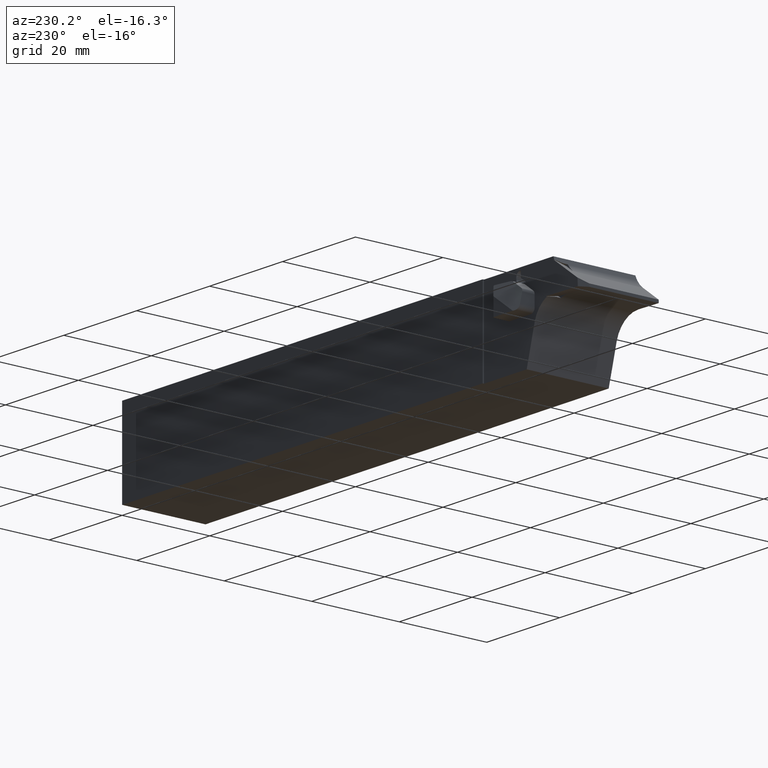
[diagram: clean part render]
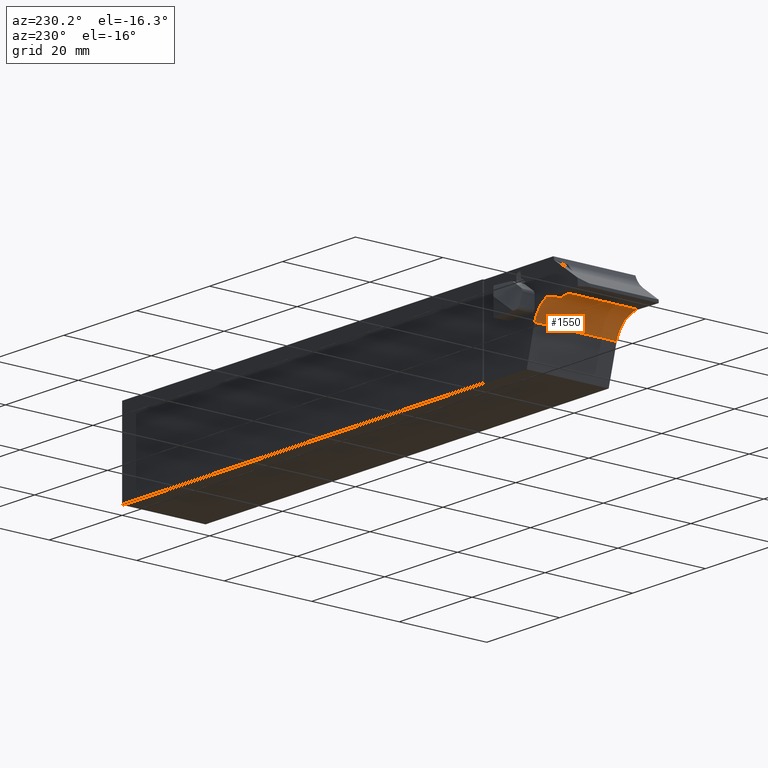
[diagram: same view with one face highlighted and labeled with its STEP entity id]
A machine part, auxiliary view. The second image highlights one B-rep face of the part: STEP entity #1550.
In plain terms, the highlighted cylindrical surface (edge-blend (fillet) strip) has radius 6.1 mm, axis along (-0, -1, 0).
Its self-contained STEP definition (entity closure, byte-faithful):
#3 = VERTEX_POINT ( 'NONE', #933 ) ;
#20 = VECTOR ( 'NONE', #101, 1000.000000000000000 ) ;
#101 = DIRECTION ( 'NONE',  ( -2.482138512326289500E-030, -1.000000000000000000, 0.0000000000000000000 ) ) ;
#117 = AXIS2_PLACEMENT_3D ( 'NONE', #138, #1014, #264 ) ;
#136 = DIRECTION ( 'NONE',  ( -2.482138512326289500E-030, -1.000000000000000000, -0.0000000000000000000 ) ) ;
#138 = CARTESIAN_POINT ( 'NONE',  ( -118.6837122982711600, -3.180000000000959800, -31.55367457411550800 ) ) ;
#206 = CIRCLE ( 'NONE', #717, 6.099999999999976600 ) ;
#241 = VERTEX_POINT ( 'NONE', #1221 ) ;
#258 = CARTESIAN_POINT ( 'NONE',  ( -118.6837122982711600, 159.8378328572430000, -31.55367457411550800 ) ) ;
#259 = ORIENTED_EDGE ( 'NONE', *, *, #787, .F. ) ;
#264 = DIRECTION ( 'NONE',  ( 0.0000000000000000000, 4.265713465516752600E-015, -1.000000000000000000 ) ) ;
#267 = CARTESIAN_POINT ( 'NONE',  ( -116.2854862758919100, -0.9118407661697826000, -25.94321914343558100 ) ) ;
#278 = CIRCLE ( 'NONE', #117, 6.099999999999980100 ) ;
#281 = VERTEX_POINT ( 'NONE', #1506 ) ;
#311 = ORIENTED_EDGE ( 'NONE', *, *, #943, .T. ) ;
#323 = ORIENTED_EDGE ( 'NONE', *, *, #645, .F. ) ;
#337 = ORIENTED_EDGE ( 'NONE', *, *, #412, .T. ) ;
#344 = DIRECTION ( 'NONE',  ( 2.482138512326289500E-030, 1.000000000000000000, -0.0000000000000000000 ) ) ;
#361 = DIRECTION ( 'NONE',  ( -2.482138512326289500E-030, -1.000000000000000000, 0.0000000000000000000 ) ) ;
#385 = CARTESIAN_POINT ( 'NONE',  ( -116.5398343350715300, 159.8378328572430000, -25.84282636400634900 ) ) ;
#412 = EDGE_CURVE ( 'NONE', #281, #1334, #975, .T. ) ;
#534 =( BOUNDED_CURVE ( )  B_SPLINE_CURVE ( 3, ( #965, #1100, #267, #1134 ),
 .UNSPECIFIED., .F., .F. ) 
 B_SPLINE_CURVE_WITH_KNOTS ( ( 4, 4 ),
 ( 0.9874437603678660700, 1.054680931260560500 ),
 .UNSPECIFIED. ) 
 CURVE ( )  GEOMETRIC_REPRESENTATION_ITEM ( )  RATIONAL_B_SPLINE_CURVE ( ( 1.000000000000000000, 0.9996232990521096700, 0.9996232990521096700, 1.000000000000000000 ) ) 
 REPRESENTATION_ITEM ( '' )  );
#546 = CARTESIAN_POINT ( 'NONE',  ( -112.7915647579078400, 159.8378328572430000, -29.97487839899015000 ) ) ;
#556 = CARTESIAN_POINT ( 'NONE',  ( -118.6837122982711600, -3.179999999999983300, -31.55367457411550100 ) ) ;
#571 = DIRECTION ( 'NONE',  ( -2.482138512326289500E-030, -1.000000000000000000, 0.0000000000000000000 ) ) ;
#600 = DIRECTION ( 'NONE',  ( -2.482138512326289500E-030, -1.000000000000000000, 0.0000000000000000000 ) ) ;
#624 = EDGE_CURVE ( 'NONE', #3, #1089, #206, .T. ) ;
#645 = EDGE_CURVE ( 'NONE', #241, #3, #1263, .T. ) ;
#676 = CARTESIAN_POINT ( 'NONE',  ( -118.6837122982711600, -19.04999999999999000, -25.45367457411553900 ) ) ;
#696 = EDGE_LOOP ( 'NONE', ( #259, #774, #1359, #323, #1053, #311, #337, #1061 ) ) ;
#702 = DIRECTION ( 'NONE',  ( 0.0000000000000000000, 0.0000000000000000000, -1.000000000000000000 ) ) ;
#712 = CIRCLE ( 'NONE', #962, 6.099999999999973900 ) ;
#717 = AXIS2_PLACEMENT_3D ( 'NONE', #556, #136, #1584 ) ;
#737 = AXIS2_PLACEMENT_3D ( 'NONE', #1412, #600, #702 ) ;
#763 = EDGE_CURVE ( 'NONE', #241, #1275, #534, .T. ) ;
#774 = ORIENTED_EDGE ( 'NONE', *, *, #878, .F. ) ;
#787 = EDGE_CURVE ( 'NONE', #1143, #1378, #995, .T. ) ;
#871 = AXIS2_PLACEMENT_3D ( 'NONE', #258, #361, #1286 ) ;
#878 = EDGE_CURVE ( 'NONE', #1089, #1143, #278, .T. ) ;
#905 = CARTESIAN_POINT ( 'NONE',  ( -118.6837122982711600, -3.180000000000986000, -25.45367457411552400 ) ) ;
#933 = CARTESIAN_POINT ( 'NONE',  ( -116.5398343350715300, -3.179999999999983300, -25.84282636400636000 ) ) ;
#943 = EDGE_CURVE ( 'NONE', #1275, #281, #712, .T. ) ;
#962 = AXIS2_PLACEMENT_3D ( 'NONE', #1517, #344, #1568 ) ;
#965 = CARTESIAN_POINT ( 'NONE',  ( -116.5398343350715600, -2.098799999999997100, -25.84282636400636000 ) ) ;
#975 = LINE ( 'NONE', #546, #1417 ) ;
#995 = LINE ( 'NONE', #1465, #20 ) ;
#1013 = EDGE_CURVE ( 'NONE', #1334, #1378, #1251, .T. ) ;
#1014 = DIRECTION ( 'NONE',  ( 7.412828028486220600E-017, -1.000000000000000000, -4.267717906500380500E-015 ) ) ;
#1053 = ORIENTED_EDGE ( 'NONE', *, *, #763, .T. ) ;
#1061 = ORIENTED_EDGE ( 'NONE', *, *, #1013, .T. ) ;
#1075 = CARTESIAN_POINT ( 'NONE',  ( -118.6391059654911400, -3.179999999999983300, -25.45383766850271800 ) ) ;
#1089 = VERTEX_POINT ( 'NONE', #1075 ) ;
#1097 = FACE_OUTER_BOUND ( 'NONE', #696, .T. ) ;
#1100 = CARTESIAN_POINT ( 'NONE',  ( -116.4118164601950700, -1.511666721175623000, -25.89088484687016100 ) ) ;
#1134 = CARTESIAN_POINT ( 'NONE',  ( -116.1609865482626300, -0.2999999999999986000, -25.99977011056520800 ) ) ;
#1143 = VERTEX_POINT ( 'NONE', #905 ) ;
#1177 = VECTOR ( 'NONE', #1256, 1000.000000000000000 ) ;
#1221 = CARTESIAN_POINT ( 'NONE',  ( -116.5398343350715600, -2.098799999999997100, -25.84282636400636000 ) ) ;
#1251 = CIRCLE ( 'NONE', #737, 6.099999999999973900 ) ;
#1256 = DIRECTION ( 'NONE',  ( -2.482138512326289500E-030, -1.000000000000000000, 0.0000000000000000000 ) ) ;
#1263 = LINE ( 'NONE', #385, #1177 ) ;
#1265 = CYLINDRICAL_SURFACE ( 'NONE', #871, 6.099999999999976600 ) ;
#1275 = VERTEX_POINT ( 'NONE', #1319 ) ;
#1286 = DIRECTION ( 'NONE',  ( 0.0000000000000000000, 0.0000000000000000000, 1.000000000000000000 ) ) ;
#1319 = CARTESIAN_POINT ( 'NONE',  ( -116.1609865482626300, -0.2999999999999986000, -25.99977011056520800 ) ) ;
#1334 = VERTEX_POINT ( 'NONE', #1527 ) ;
#1359 = ORIENTED_EDGE ( 'NONE', *, *, #624, .F. ) ;
#1378 = VERTEX_POINT ( 'NONE', #676 ) ;
#1412 = CARTESIAN_POINT ( 'NONE',  ( -118.6837122982711600, -19.04999999999999000, -31.55367457411552200 ) ) ;
#1417 = VECTOR ( 'NONE', #571, 1000.000000000000000 ) ;
#1465 = CARTESIAN_POINT ( 'NONE',  ( -118.6837122982711600, 159.8378328572430000, -25.45367457411553100 ) ) ;
#1506 = CARTESIAN_POINT ( 'NONE',  ( -112.7915647579078400, -0.2999999999999934400, -29.97487839899015700 ) ) ;
#1517 = CARTESIAN_POINT ( 'NONE',  ( -118.6837122982711600, -0.2999999999999942700, -31.55367457411552200 ) ) ;
#1527 = CARTESIAN_POINT ( 'NONE',  ( -112.7915647579078400, -19.04999999999999000, -29.97487839899015700 ) ) ;
#1550 = ADVANCED_FACE ( 'NONE', ( #1097 ), #1265, .F. ) ;
#1568 = DIRECTION ( 'NONE',  ( -6.825141544826811100E-015, 0.0000000000000000000, -1.000000000000000000 ) ) ;
#1584 = DIRECTION ( 'NONE',  ( 5.005103799539659400E-014, 0.0000000000000000000, 1.000000000000000000 ) ) ;